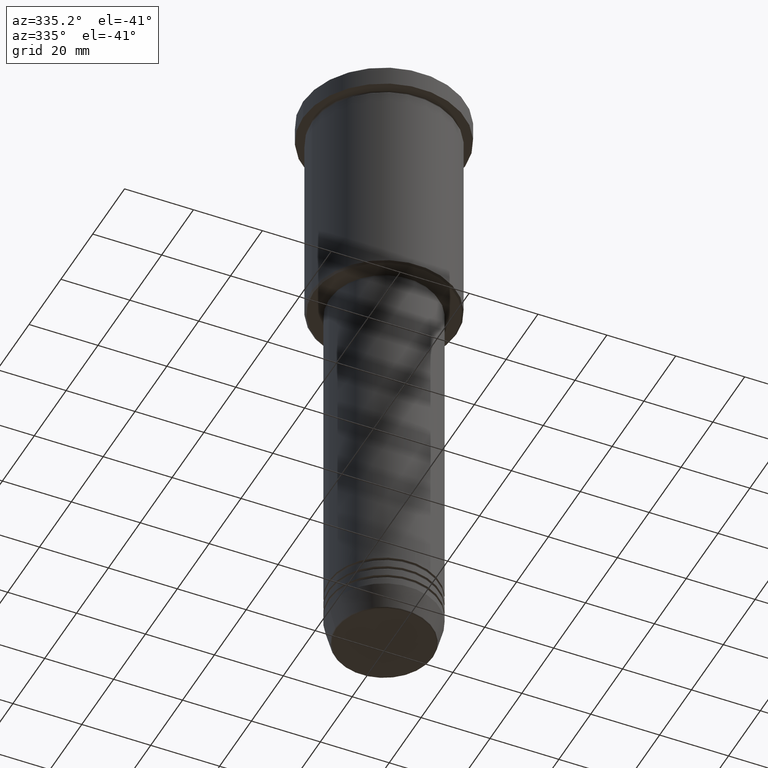
[diagram: clean part render]
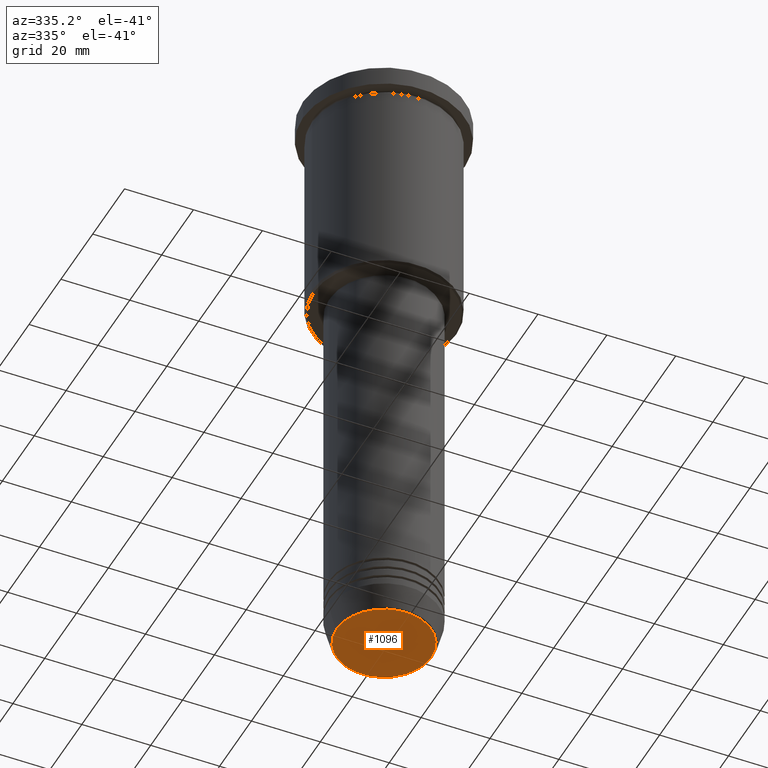
[diagram: same view with one face highlighted and labeled with its STEP entity id]
A machine part, auxiliary view. The second image highlights one B-rep face of the part: STEP entity #1096.
In plain terms, the highlighted planar face has unit normal (0, -0, 1).
Its self-contained STEP definition (entity closure, byte-faithful):
#7 = EDGE_CURVE ( 'NONE', #795, #310, #602, .T. ) ;
#31 = CARTESIAN_POINT ( 'NONE',  ( 13.74069215899266894, 0.000000000000000000, -181.0000000000000000 ) ) ;
#93 = AXIS2_PLACEMENT_3D ( 'NONE', #201, #569, #108 ) ;
#108 = DIRECTION ( 'NONE',  ( 1.000000000000000000, 0.000000000000000000, 0.000000000000000000 ) ) ;
#118 = AXIS2_PLACEMENT_3D ( 'NONE', #617, #160, #257 ) ;
#135 = DIRECTION ( 'NONE',  ( 1.000000000000000000, 0.000000000000000000, 0.000000000000000000 ) ) ;
#151 = ORIENTED_EDGE ( 'NONE', *, *, #7, .T. ) ;
#160 = DIRECTION ( 'NONE',  ( 0.000000000000000000, 0.000000000000000000, -1.000000000000000000 ) ) ;
#201 = CARTESIAN_POINT ( 'NONE',  ( 0.000000000000000000, 0.000000000000000000, -181.0000000000000000 ) ) ;
#257 = DIRECTION ( 'NONE',  ( 1.000000000000000000, 0.000000000000000000, 0.000000000000000000 ) ) ;
#310 = VERTEX_POINT ( 'NONE', #31 ) ;
#323 = CARTESIAN_POINT ( 'NONE',  ( 0.000000000000000000, 0.000000000000000000, -181.0000000000000000 ) ) ;
#341 = EDGE_CURVE ( 'NONE', #310, #795, #1067, .T. ) ;
#402 = CARTESIAN_POINT ( 'NONE',  ( -13.74069215899266894, 1.712322416342417563E-15, -181.0000000000000000 ) ) ;
#553 = AXIS2_PLACEMENT_3D ( 'NONE', #323, #946, #135 ) ;
#569 = DIRECTION ( 'NONE',  ( 0.000000000000000000, -0.000000000000000000, 1.000000000000000000 ) ) ;
#602 = CIRCLE ( 'NONE', #118, 13.74069215899266894 ) ;
#617 = CARTESIAN_POINT ( 'NONE',  ( 0.000000000000000000, 0.000000000000000000, -181.0000000000000000 ) ) ;
#795 = VERTEX_POINT ( 'NONE', #402 ) ;
#901 = ORIENTED_EDGE ( 'NONE', *, *, #341, .T. ) ;
#946 = DIRECTION ( 'NONE',  ( 0.000000000000000000, 0.000000000000000000, -1.000000000000000000 ) ) ;
#996 = EDGE_LOOP ( 'NONE', ( #901, #151 ) ) ;
#1011 = PLANE ( 'NONE',  #93 ) ;
#1067 = CIRCLE ( 'NONE', #553, 13.74069215899266894 ) ;
#1096 = ADVANCED_FACE ( 'NONE', ( #1107 ), #1011, .F. ) ;
#1107 = FACE_OUTER_BOUND ( 'NONE', #996, .T. ) ;